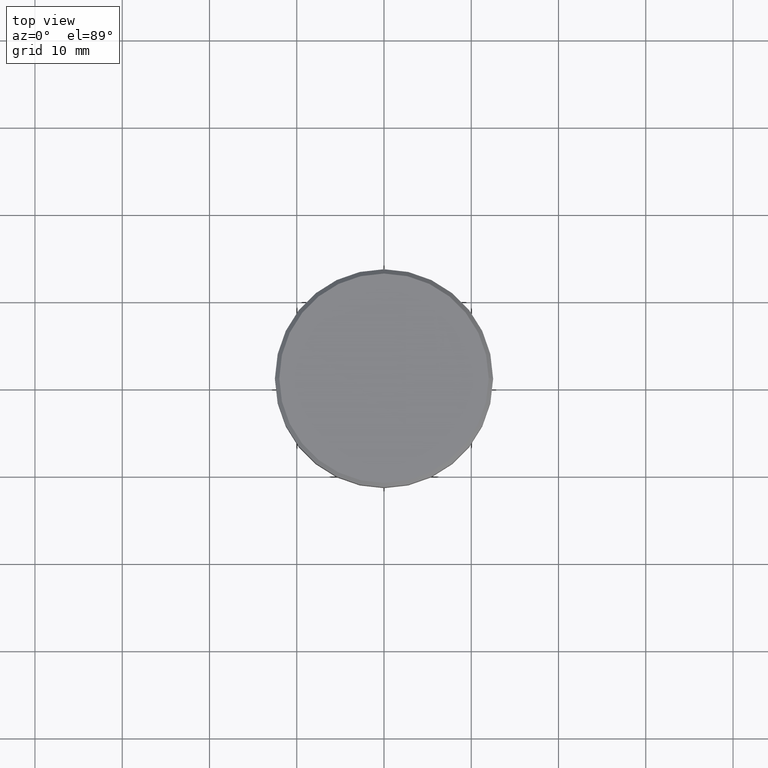
[diagram: clean part render]
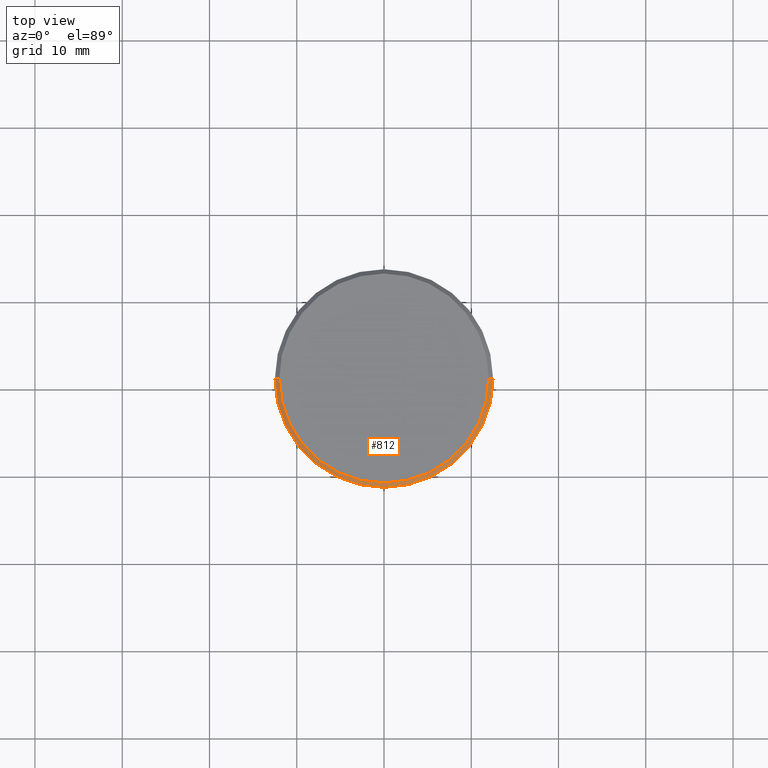
[diagram: same view with one face highlighted and labeled with its STEP entity id]
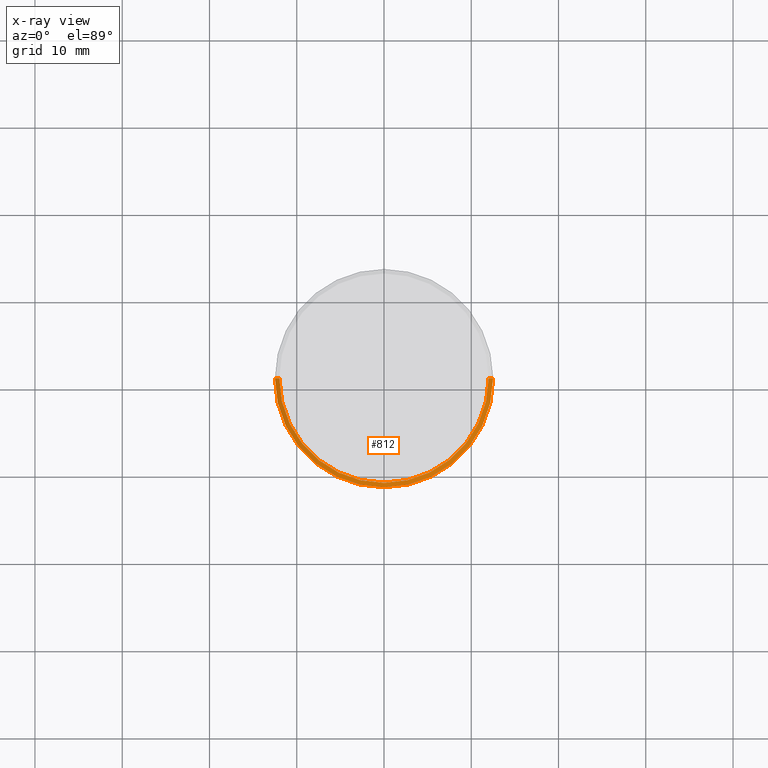
[diagram: x-ray of the same camera — body ghosted, the highlighted face saturated]
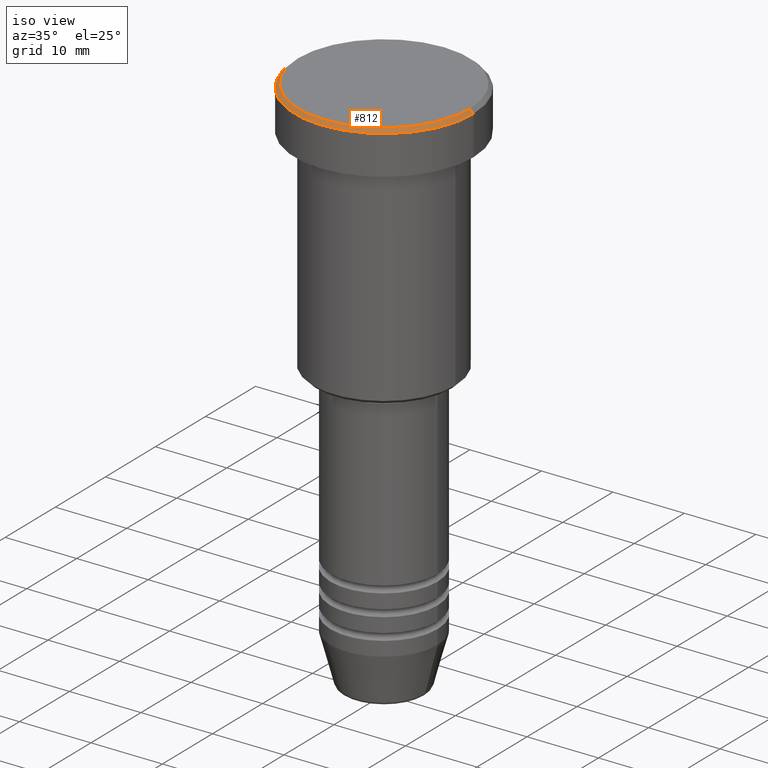
[diagram: same view with one face highlighted and labeled with its STEP entity id]
A machine part, top view. The second image highlights one B-rep face of the part: STEP entity #812.
The next image is the same camera in x-ray: the body ghosted, the highlighted face saturated — about 0% of this face is hidden behind the body in this view.
A second angle (iso view) of the same face is appended — the face is thin or edge-on in the first view.
In plain terms, the highlighted conical surface has half-angle 45 deg.
Its self-contained STEP definition (entity closure, byte-faithful):
#13 = EDGE_CURVE ( 'NONE', #940, #386, #774, .T. ) ;
#66 = CARTESIAN_POINT ( 'NONE',  ( -12.50000000000000000, 1.530808498934191521E-15, -0.4999999999999987232 ) ) ;
#108 = DIRECTION ( 'NONE',  ( 1.000000000000000000, 0.000000000000000000, 0.000000000000000000 ) ) ;
#123 = DIRECTION ( 'NONE',  ( -1.000000000000000000, 0.000000000000000000, 0.000000000000000000 ) ) ;
#126 = FACE_OUTER_BOUND ( 'NONE', #476, .T. ) ;
#160 = EDGE_CURVE ( 'NONE', #948, #1006, #196, .T. ) ;
#161 = DIRECTION ( 'NONE',  ( 1.000000000000000000, 0.000000000000000000, 0.000000000000000000 ) ) ;
#171 = EDGE_CURVE ( 'NONE', #386, #948, #606, .T. ) ;
#196 = CIRCLE ( 'NONE', #1083, 12.50000000000000000 ) ;
#212 = CONICAL_SURFACE ( 'NONE', #321, 11.99999999999999645, 0.7853981633974533860 ) ;
#224 = ORIENTED_EDGE ( 'NONE', *, *, #171, .F. ) ;
#246 = DIRECTION ( 'NONE',  ( 0.7071067811865512365, 8.659560562354978464E-17, -0.7071067811865439090 ) ) ;
#256 = AXIS2_PLACEMENT_3D ( 'NONE', #467, #746, #108 ) ;
#301 = CARTESIAN_POINT ( 'NONE',  ( 0.000000000000000000, 0.000000000000000000, 0.000000000000000000 ) ) ;
#321 = AXIS2_PLACEMENT_3D ( 'NONE', #301, #854, #123 ) ;
#386 = VERTEX_POINT ( 'NONE', #1147 ) ;
#424 = VECTOR ( 'NONE', #246, 1000.000000000000000 ) ;
#425 = CARTESIAN_POINT ( 'NONE',  ( 12.50000000000000000, 0.000000000000000000, -0.4999999999999987232 ) ) ;
#467 = CARTESIAN_POINT ( 'NONE',  ( 0.000000000000000000, 0.000000000000000000, 0.000000000000000000 ) ) ;
#476 = EDGE_LOOP ( 'NONE', ( #224, #577, #963, #1058 ) ) ;
#506 = EDGE_CURVE ( 'NONE', #940, #1006, #1167, .T. ) ;
#521 = CARTESIAN_POINT ( 'NONE',  ( -11.99999999999999645, 0.000000000000000000, 0.000000000000000000 ) ) ;
#571 = VECTOR ( 'NONE', #905, 1000.000000000000000 ) ;
#577 = ORIENTED_EDGE ( 'NONE', *, *, #13, .F. ) ;
#606 = LINE ( 'NONE', #889, #424 ) ;
#746 = DIRECTION ( 'NONE',  ( -0.000000000000000000, -0.000000000000000000, 1.000000000000000000 ) ) ;
#774 = CIRCLE ( 'NONE', #256, 11.99999999999999645 ) ;
#812 = ADVANCED_FACE ( 'NONE', ( #126 ), #212, .T. ) ;
#829 = CARTESIAN_POINT ( 'NONE',  ( -11.99999999999999645, 0.000000000000000000, 0.000000000000000000 ) ) ;
#854 = DIRECTION ( 'NONE',  ( 0.000000000000000000, 0.000000000000000000, -1.000000000000000000 ) ) ;
#889 = CARTESIAN_POINT ( 'NONE',  ( 11.99999999999999645, 1.469576158976823553E-15, 0.000000000000000000 ) ) ;
#905 = DIRECTION ( 'NONE',  ( -0.7071067811865512365, 0.000000000000000000, -0.7071067811865439090 ) ) ;
#940 = VERTEX_POINT ( 'NONE', #521 ) ;
#948 = VERTEX_POINT ( 'NONE', #425 ) ;
#963 = ORIENTED_EDGE ( 'NONE', *, *, #506, .T. ) ;
#1006 = VERTEX_POINT ( 'NONE', #66 ) ;
#1058 = ORIENTED_EDGE ( 'NONE', *, *, #160, .F. ) ;
#1083 = AXIS2_PLACEMENT_3D ( 'NONE', #1151, #1172, #161 ) ;
#1147 = CARTESIAN_POINT ( 'NONE',  ( 11.99999999999999645, 1.500192328955507537E-15, 0.000000000000000000 ) ) ;
#1151 = CARTESIAN_POINT ( 'NONE',  ( 0.000000000000000000, 0.000000000000000000, -0.4999999999999987232 ) ) ;
#1167 = LINE ( 'NONE', #829, #571 ) ;
#1172 = DIRECTION ( 'NONE',  ( 0.000000000000000000, 0.000000000000000000, -1.000000000000000000 ) ) ;